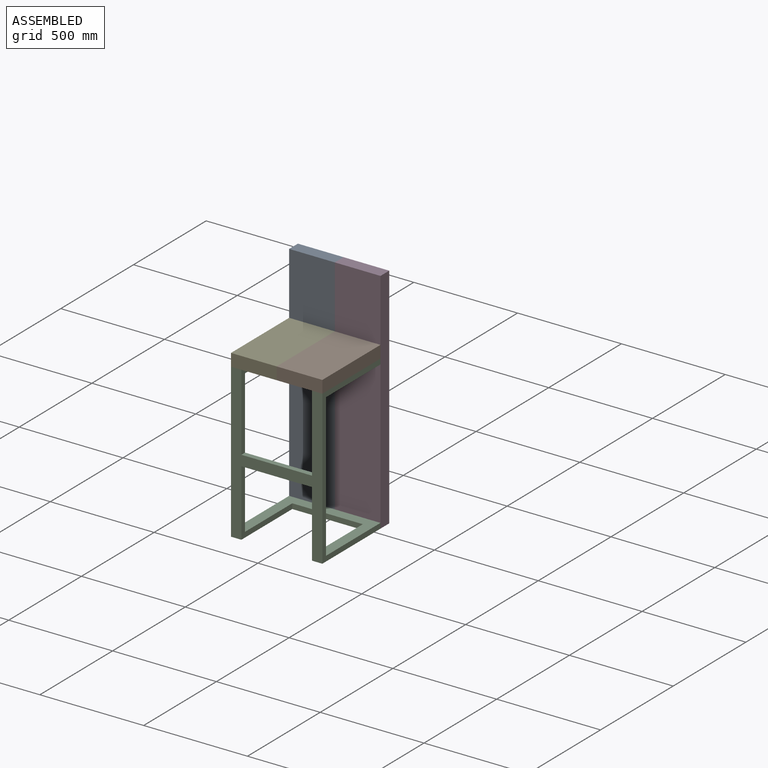
[diagram: assembled view]
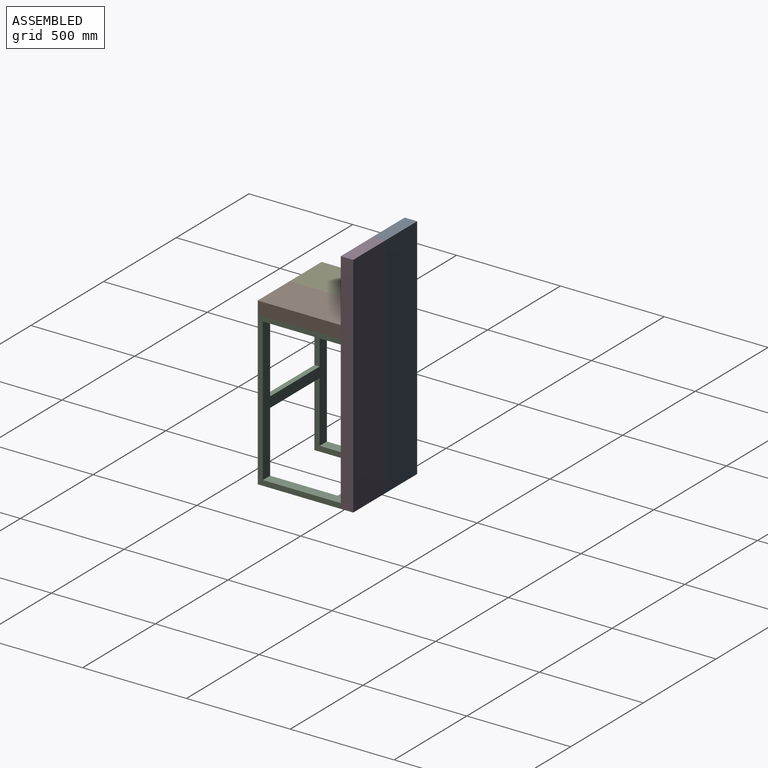
[diagram: assembled view, second angle]
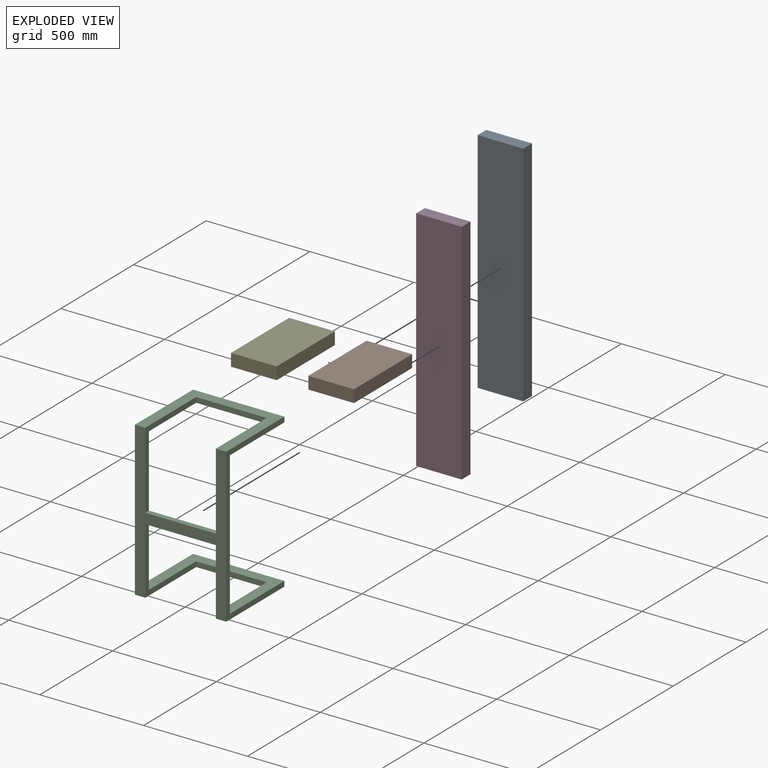
[diagram: exploded view]
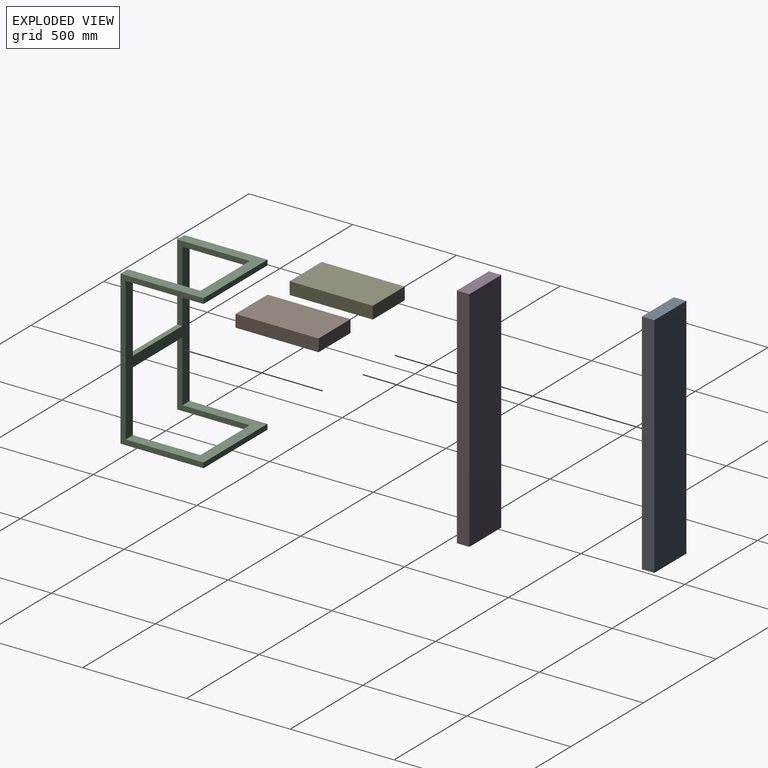
[diagram: exploded view, second angle]
ASSEMBLY  parts=5 mates=4
PART A: 6 faces, bbox 1100x220x60 mm
  f0: plane 1100x60mm, normal (0,-1,0), area 66000mm2, adj f1,f3,f4,f5
  f1: plane 220x60mm, normal (1,0,0), area 13200mm2, adj f0,f2,f4,f5
  f2: plane 1100x60mm, normal (0,1,0), area 66000mm2, adj f1,f3,f4,f5
  f3: plane 220x60mm, normal (-1,0,0), area 13200mm2, adj f0,f2,f4,f5
  f4: plane 1100x220mm, normal (0,0,1), area 242000mm2, adj f0,f1,f2,f3
  f5: plane 1100x220mm, normal (0,0,-1), area 242000mm2, adj f0,f1,f2,f3
PART B: 6 faces, bbox 400x220x60 mm
  f0: plane 400x60mm, normal (0,-1,0), area 24000mm2, adj f1,f3,f4,f5
  f1: plane 220x60mm, normal (1,0,0), area 13200mm2, adj f0,f2,f4,f5
  f2: plane 400x60mm, normal (0,1,0), area 24000mm2, adj f1,f3,f4,f5
  f3: plane 220x60mm, normal (-1,0,0), area 13200mm2, adj f0,f2,f4,f5
  f4: plane 400x220mm, normal (0,0,1), area 88000mm2, adj f0,f1,f2,f3
  f5: plane 400x220mm, normal (0,0,-1), area 88000mm2, adj f0,f1,f2,f3
PART C: 18 faces, bbox 440x400x740 mm
  f0: plane 370x350mm, normal (-1,0,0), area 17375mm2, adj f5,f7,f8,f9,f14,f16
  f1: plane 350x320mm, normal (-1,0,0), area 16125mm2, adj f2,f4,f5,f7,f15,f17
  f2: plane 440x400mm, normal (0,0,-1), area 57000mm2, adj f1,f3,f5,f6,f11,f13,f15
  f3: plane 740x400mm, normal (1,0,0), area 37250mm2, adj f2,f4,f5,f6,f7,f8,f9,f10
  f4: plane 440x375mm, normal (0,0,1), area 54500mm2, adj f1,f3,f6,f7,f11,f13,f15
  f5: plane 740x440mm, normal (0,-1,0), area 91000mm2, adj f0,f1,f2,f3,f9,f11,f12,f13
  f6: plane 440x25mm, normal (0,1,0), area 11000mm2, adj f2,f3,f4,f13
  f7: plane 690x440mm, normal (0,1,0), area 86000mm2, adj f0,f1,f3,f4,f8,f11,f12,f13
  f8: plane 440x375mm, normal (0,0,-1), area 54500mm2, adj f0,f3,f7,f10,f12,f13,f14
  f9: plane 440x400mm, normal (0,0,1), area 57000mm2, adj f0,f3,f5,f10,f12,f13,f14
  f10: plane 440x25mm, normal (0,1,0), area 11000mm2, adj f3,f8,f9,f13
  f11: plane 350x320mm, normal (1,0,0), area 16125mm2, adj f2,f4,f5,f7,f15,f17
  f12: plane 370x350mm, normal (1,0,0), area 17375mm2, adj f5,f7,f8,f9,f14,f16
  f13: plane 740x400mm, normal (-1,0,0), area 37250mm2, adj f2,f4,f5,f6,f7,f8,f9,f10
  f14: plane 340x25mm, normal (0,-1,0), area 8500mm2, adj f0,f8,f9,f12
  f15: plane 340x25mm, normal (0,-1,0), area 8500mm2, adj f1,f2,f4,f11
  f16: plane 340x25mm, normal (0,0,1), area 8500mm2, adj f0,f5,f7,f12
  f17: plane 340x25mm, normal (0,0,-1), area 8500mm2, adj f1,f5,f7,f11
PART D: same geometry as A
PART E: same geometry as B
PLACE A rot(axis=(0.58,0.58,-0.58),120deg) t=(295.04,67.46,-841.68)mm
PLACE B rot(axis=(0,0,-1),90deg) t=(515.04,-392.54,-101.68)mm
PLACE C t=(735.04,7.46,-841.68)mm
PLACE D rot(axis=(0.58,0.58,-0.58),120deg) t=(515.04,67.46,-841.68)mm
PLACE E rot(axis=(0,0,-1),90deg) t=(295.04,-392.54,-101.68)mm
MATE fastened E.f5 <-> C.f9  axis (0,0,-1) through (295.04,7.46,-101.68)mm
MATE fastened A.f4 <-> C.f6  axis (0,-1,0) through (295.04,7.46,-841.68)mm
MATE fastened D.f4 <-> C.f6  axis (0,-1,0) through (735.04,7.46,-841.68)mm
MATE fastened B.f0 <-> E.f2  axis (-1,0,0) through (515.04,-192.54,-71.68)mm
